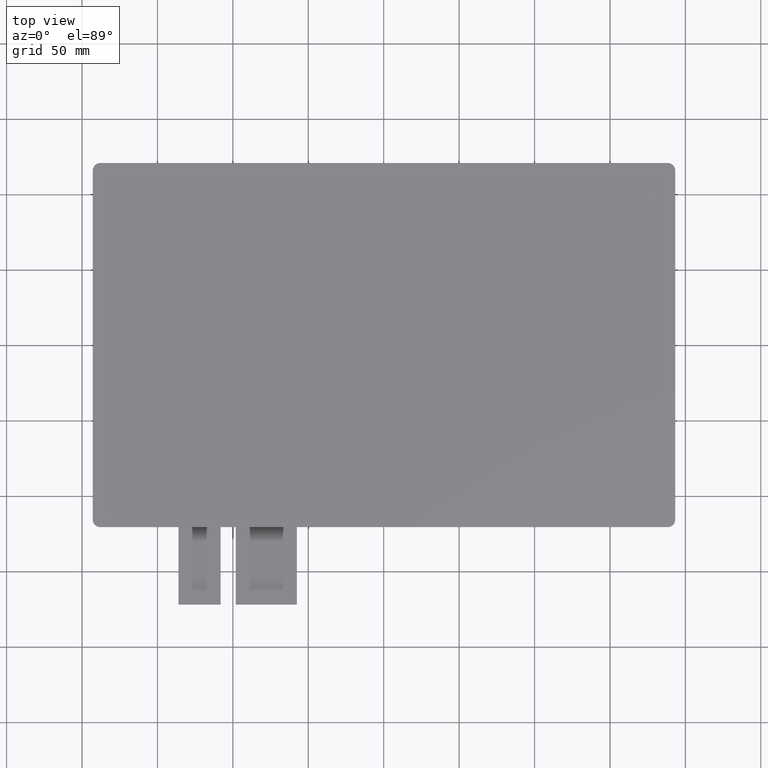
[diagram: clean part render]
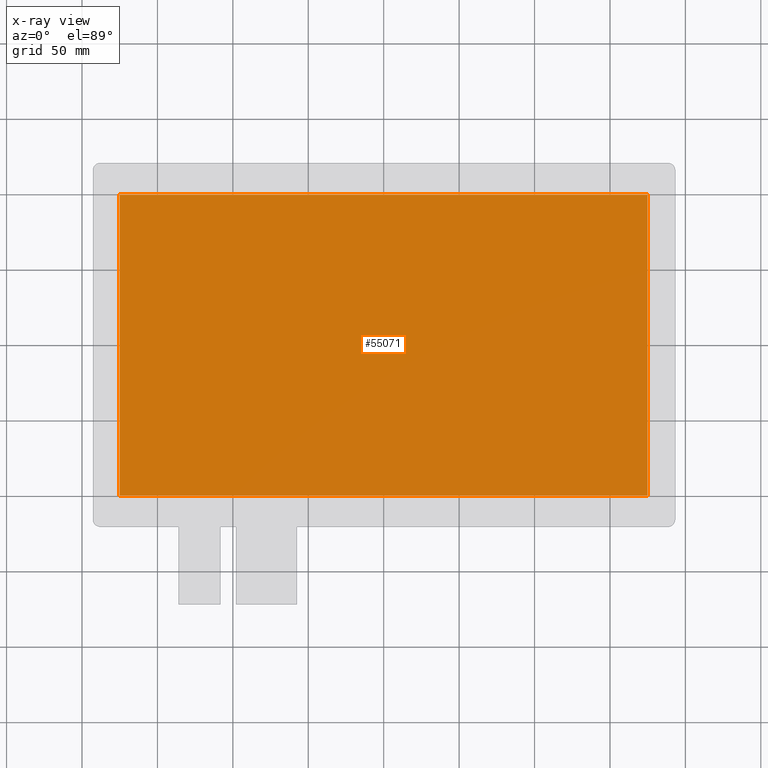
[diagram: x-ray — body ghosted, one internal face saturated and labeled with its STEP entity id]
A machine part, top view, then the same camera in x-ray: the body is ghosted and one INTERNAL B-rep face — a face not visible from any outside direction — is saturated and labeled: STEP entity #55071.
In plain terms, the highlighted planar face has unit normal (0, 0, -1).
Its self-contained STEP definition (entity closure, byte-faithful):
#3356=FACE_OUTER_BOUND('',#6224,.T.);
#6224=EDGE_LOOP('',(#49913,#49914,#49915,#49916));
#13957=LINE('',#88573,#21056);
#13967=LINE('',#88592,#21066);
#13974=LINE('',#88606,#21073);
#13984=LINE('',#88626,#21083);
#21056=VECTOR('',#72416,10.);
#21066=VECTOR('',#72432,10.);
#21073=VECTOR('',#72445,10.);
#21083=VECTOR('',#72463,10.);
#26305=VERTEX_POINT('',#88570);
#26306=VERTEX_POINT('',#88572);
#26312=VERTEX_POINT('',#88590);
#26316=VERTEX_POINT('',#88604);
#34169=EDGE_CURVE('',#26306,#26305,#13957,.T.);
#34179=EDGE_CURVE('',#26305,#26312,#13967,.T.);
#34186=EDGE_CURVE('',#26312,#26316,#13974,.T.);
#34196=EDGE_CURVE('',#26316,#26306,#13984,.T.);
#49913=ORIENTED_EDGE('',*,*,#34169,.T.);
#49914=ORIENTED_EDGE('',*,*,#34179,.T.);
#49915=ORIENTED_EDGE('',*,*,#34186,.T.);
#49916=ORIENTED_EDGE('',*,*,#34196,.T.);
#52352=PLANE('',#58547);
#55071=ADVANCED_FACE('',(#3356),#52352,.T.);
#58547=AXIS2_PLACEMENT_3D('',#88625,#72461,#72462);
#72416=DIRECTION('',(2.92585990637833E-15,1.,0.));
#72432=DIRECTION('',(1.,1.23016401620515E-16,0.));
#72445=DIRECTION('',(-9.29241629085928E-17,-1.,0.));
#72461=DIRECTION('center_axis',(0.,0.,-1.));
#72462=DIRECTION('ref_axis',(-1.,0.,0.));
#72463=DIRECTION('',(-1.,2.83040451161913E-16,0.));
#88570=CARTESIAN_POINT('',(-175.049999999999,99.6999999999995,-3.60000000000001));
#88572=CARTESIAN_POINT('',(-175.05,-99.8000000000005,-3.60000000000001));
#88573=CARTESIAN_POINT('',(-175.049999999999,-51.625,-3.6));
#88590=CARTESIAN_POINT('',(174.95,99.6999999999998,-3.60000000000002));
#88592=CARTESIAN_POINT('',(-90.9499999999998,99.7,-3.6));
#88604=CARTESIAN_POINT('',(174.95,-99.8000000000002,-3.60000000000002));
#88606=CARTESIAN_POINT('',(174.95,48.1249999999999,-3.6));
#88625=CARTESIAN_POINT('Origin',(-1.35000000000002,-3.44999999999999,-3.6));
#88626=CARTESIAN_POINT('',(89.55,-99.8000000000003,-3.6));